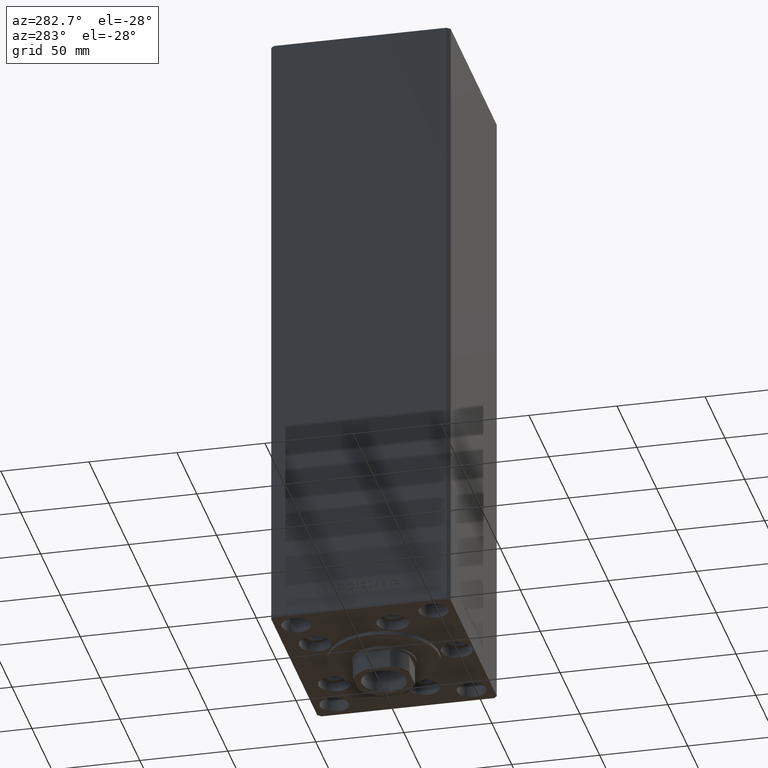
[diagram: clean part render]
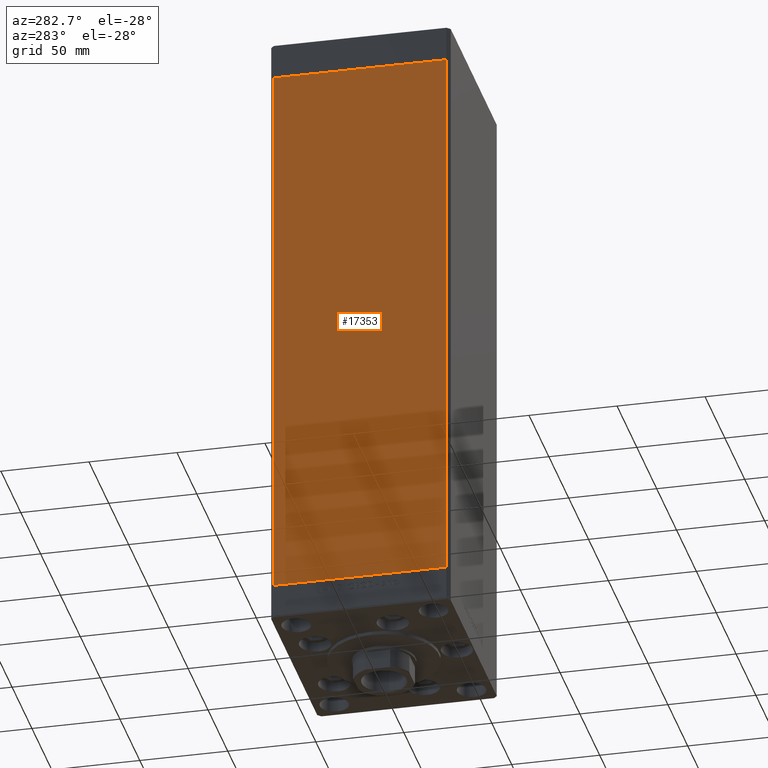
[diagram: same view with one face highlighted and labeled with its STEP entity id]
A machine part, auxiliary view. The second image highlights one B-rep face of the part: STEP entity #17353.
In plain terms, the highlighted planar face has unit normal (1, 0, 0).
Its self-contained STEP definition (entity closure, byte-faithful):
#480 = LINE ( 'NONE', #38510, #47235 ) ;
#1272 = CARTESIAN_POINT ( 'NONE',  ( -59.99999999999998579, -49.00000000000000000, 318.5000000000000000 ) ) ;
#3385 = CARTESIAN_POINT ( 'NONE',  ( -60.00000000000001421, 49.00000000000000000, 318.5000000000000000 ) ) ;
#3856 = EDGE_CURVE ( 'NONE', #47403, #25465, #20591, .T. ) ;
#4689 = DIRECTION ( 'NONE',  ( 2.832201593431521726E-16, -1.000000000000000000, 0.000000000000000000 ) ) ;
#4696 = CARTESIAN_POINT ( 'NONE',  ( -60.00000000000001421, 49.00000000000000000, 318.5000000000000000 ) ) ;
#6542 = VERTEX_POINT ( 'NONE', #1272 ) ;
#7917 = CARTESIAN_POINT ( 'NONE',  ( -60.00000000000001421, 49.00000000000000000, 0.000000000000000000 ) ) ;
#9282 = PLANE ( 'NONE',  #17784 ) ;
#11148 = VERTEX_POINT ( 'NONE', #15642 ) ;
#12755 = DIRECTION ( 'NONE',  ( 1.000000000000000000, 2.832201593431521726E-16, -0.000000000000000000 ) ) ;
#13334 = CARTESIAN_POINT ( 'NONE',  ( -60.00000000000001421, 49.00000000000000000, 0.000000000000000000 ) ) ;
#13471 = ORIENTED_EDGE ( 'NONE', *, *, #36939, .T. ) ;
#15390 = DIRECTION ( 'NONE',  ( 2.832201593431521726E-16, -1.000000000000000000, 0.000000000000000000 ) ) ;
#15642 = CARTESIAN_POINT ( 'NONE',  ( -59.99999999999998579, -49.00000000000000000, 0.000000000000000000 ) ) ;
#16617 = VECTOR ( 'NONE', #4689, 1000.000000000000000 ) ;
#16974 = DIRECTION ( 'NONE',  ( -0.000000000000000000, -0.000000000000000000, -1.000000000000000000 ) ) ;
#17353 = ADVANCED_FACE ( 'NONE', ( #27925 ), #9282, .F. ) ;
#17784 = AXIS2_PLACEMENT_3D ( 'NONE', #20217, #12755, #47547 ) ;
#19598 = EDGE_CURVE ( 'NONE', #47403, #6542, #480, .T. ) ;
#20217 = CARTESIAN_POINT ( 'NONE',  ( -60.00000000000001421, 49.00000000000000000, 318.5000000000000000 ) ) ;
#20591 = LINE ( 'NONE', #4696, #35378 ) ;
#20750 = ORIENTED_EDGE ( 'NONE', *, *, #19598, .F. ) ;
#24004 = ORIENTED_EDGE ( 'NONE', *, *, #3856, .T. ) ;
#25465 = VERTEX_POINT ( 'NONE', #13334 ) ;
#27552 = DIRECTION ( 'NONE',  ( -0.000000000000000000, -0.000000000000000000, -1.000000000000000000 ) ) ;
#27924 = LINE ( 'NONE', #43073, #42554 ) ;
#27925 = FACE_OUTER_BOUND ( 'NONE', #37497, .T. ) ;
#34506 = LINE ( 'NONE', #7917, #16617 ) ;
#35378 = VECTOR ( 'NONE', #27552, 1000.000000000000000 ) ;
#36939 = EDGE_CURVE ( 'NONE', #25465, #11148, #34506, .T. ) ;
#37497 = EDGE_LOOP ( 'NONE', ( #13471, #46433, #20750, #24004 ) ) ;
#38510 = CARTESIAN_POINT ( 'NONE',  ( -60.00000000000001421, 49.00000000000000000, 318.5000000000000000 ) ) ;
#42554 = VECTOR ( 'NONE', #16974, 1000.000000000000000 ) ;
#43073 = CARTESIAN_POINT ( 'NONE',  ( -59.99999999999998579, -49.00000000000000000, 318.5000000000000000 ) ) ;
#46433 = ORIENTED_EDGE ( 'NONE', *, *, #46853, .F. ) ;
#46853 = EDGE_CURVE ( 'NONE', #6542, #11148, #27924, .T. ) ;
#47235 = VECTOR ( 'NONE', #15390, 1000.000000000000000 ) ;
#47403 = VERTEX_POINT ( 'NONE', #3385 ) ;
#47547 = DIRECTION ( 'NONE',  ( -2.832201593431521726E-16, 1.000000000000000000, 0.000000000000000000 ) ) ;